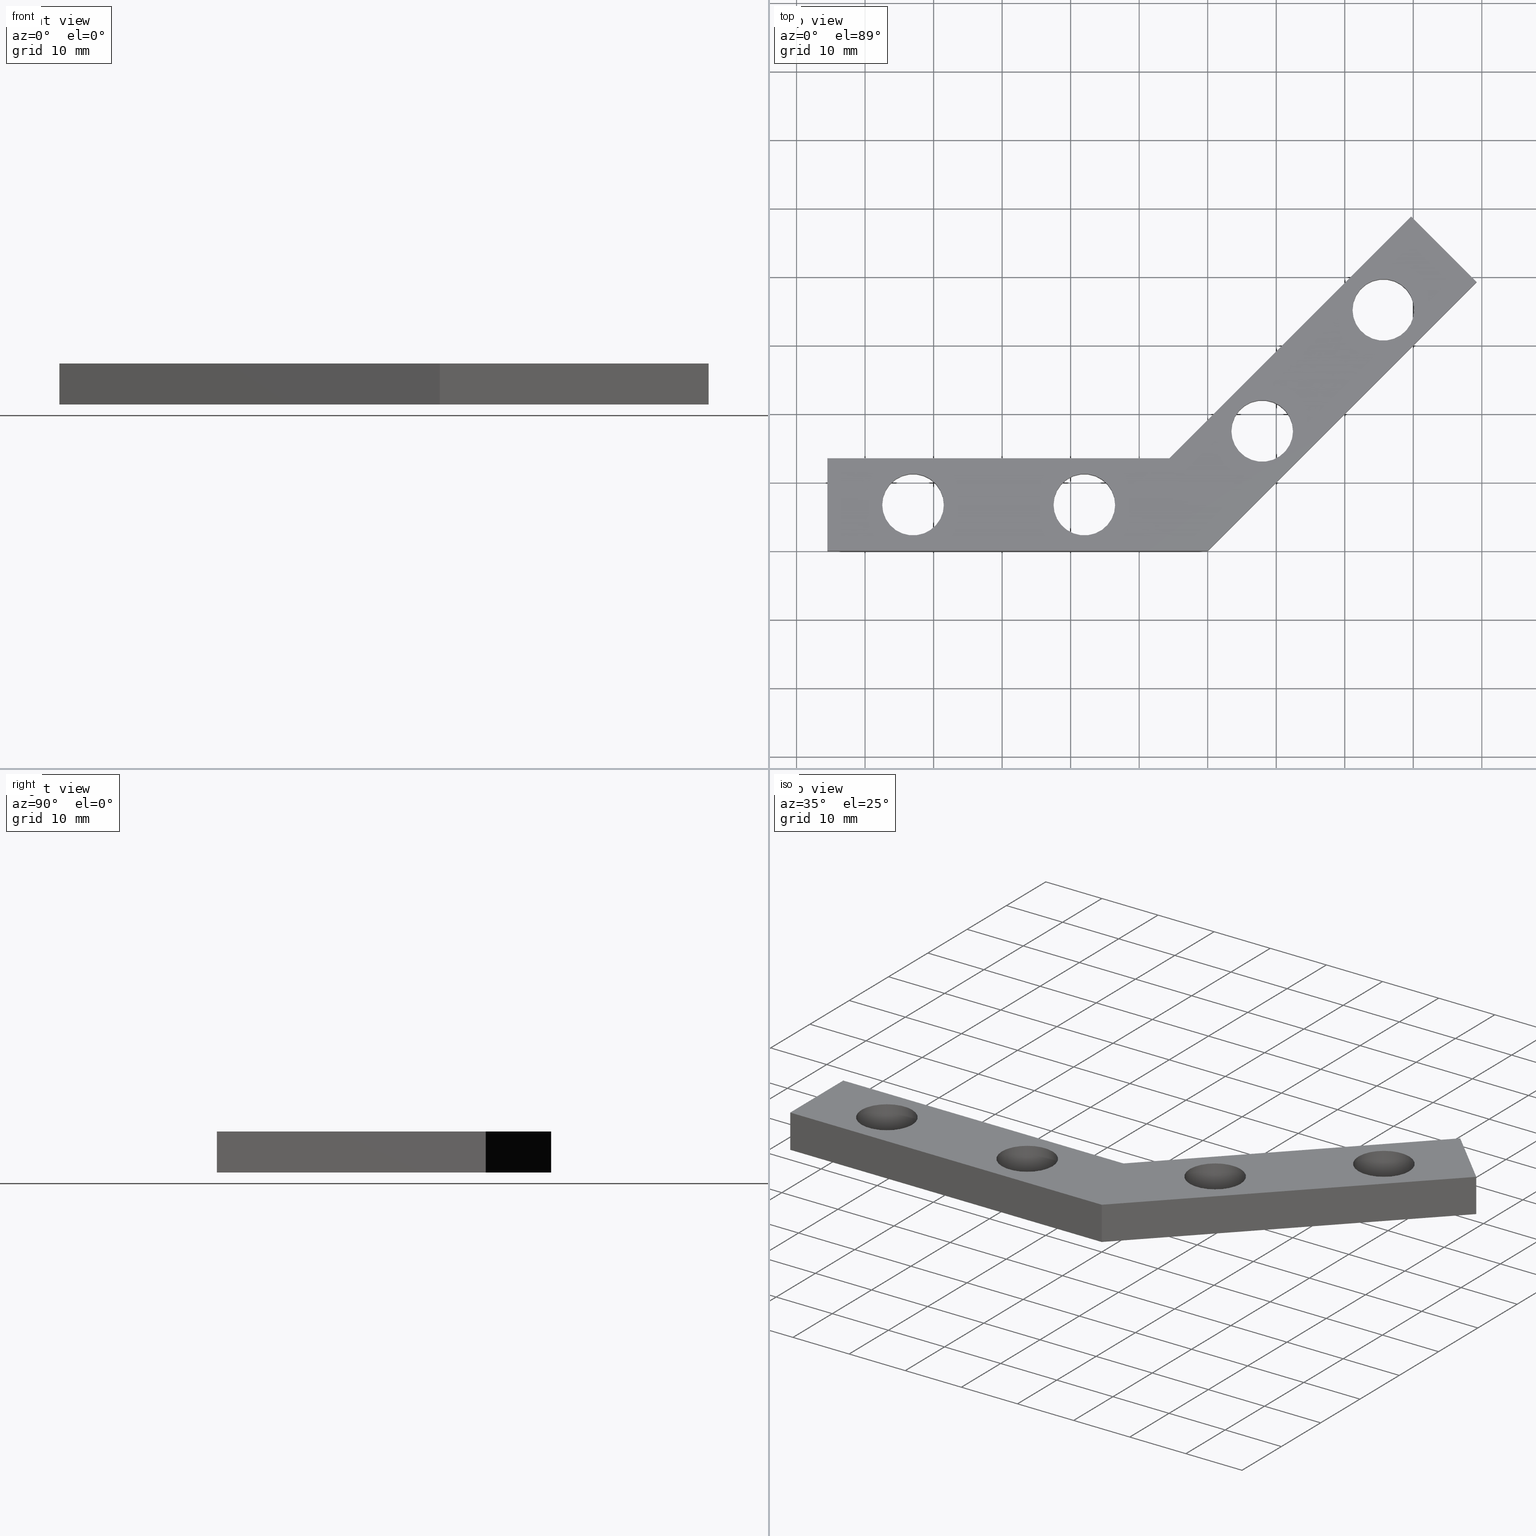
[diagram: canonical four-view strip — front | top / right | iso, engineering-drawing reading convention]
A machine part, canonical four-view strip (front | top / right | iso — engineering-drawing reading convention). The complete STEP part file that produces these views, byte-faithful:
ISO-10303-21;
HEADER;
/****************************************************************
 * Generated by software with PDE/Lib inside                    *
 * PDElib Version v4.4, created Mon 02/23/2004                  *
 * International Technegroup Inc. (www.iti-oh.com)              *
 ****************************************************************/
FILE_DESCRIPTION(('STEP AP203'),'2;1');
FILE_NAME('14.306.00.stp','2011-03-05T12:38:35',(''),(''),'2009.3.110','THINKDESIGN','');
FILE_SCHEMA(('CONFIG_CONTROL_DESIGN'));
ENDSEC;
DATA;
#2=CARTESIAN_POINT('',(-55.500028999778351,0.0,6.0));
#3=DIRECTION('',(0.0,1.0,0.0));
#4=DIRECTION('',(1.0,0.0,0.0));
#5=AXIS2_PLACEMENT_3D('',#2,#3,#4);
#6=PLANE('',#5);
#7=CARTESIAN_POINT('',(-55.500028999778351,0.0,6.0));
#8=VERTEX_POINT('',#7);
#9=CARTESIAN_POINT('',(-55.500028999778351,0.0,0.0));
#10=VERTEX_POINT('',#9);
#11=CARTESIAN_POINT('',(-55.500028999778351,0.0,6.0));
#12=DIRECTION('',(0.0,0.0,-1.0));
#13=VECTOR('',#12,6.0);
#14=LINE('',#11,#13);
#15=EDGE_CURVE('',#8,#10,#14,.T.);
#16=ORIENTED_EDGE('',*,*,#15,.T.);
#17=CARTESIAN_POINT('',(0.0,0.0,0.0));
#18=VERTEX_POINT('',#17);
#19=CARTESIAN_POINT('',(-55.500028999778351,0.0,0.0));
#20=DIRECTION('',(1.0,0.0,0.0));
#21=VECTOR('',#20,55.500028999778351);
#22=LINE('',#19,#21);
#23=EDGE_CURVE('',#10,#18,#22,.T.);
#24=ORIENTED_EDGE('',*,*,#23,.T.);
#25=CARTESIAN_POINT('',(0.0,0.0,6.0));
#26=VERTEX_POINT('',#25);
#27=CARTESIAN_POINT('',(0.0,0.0,6.0));
#28=DIRECTION('',(0.0,0.0,-1.0));
#29=VECTOR('',#28,6.0);
#30=LINE('',#27,#29);
#31=EDGE_CURVE('',#26,#18,#30,.T.);
#32=ORIENTED_EDGE('',*,*,#31,.F.);
#33=CARTESIAN_POINT('',(-55.500028999778351,0.0,6.0));
#34=DIRECTION('',(1.0,0.0,0.0));
#35=VECTOR('',#34,55.500028999778351);
#36=LINE('',#33,#35);
#37=EDGE_CURVE('',#8,#26,#36,.T.);
#38=ORIENTED_EDGE('',*,*,#37,.F.);
#39=EDGE_LOOP('',(#16,#24,#32,#38));
#40=FACE_OUTER_BOUND('',#39,.T.);
#41=ADVANCED_FACE('',(#40),#6,.F.);
#42=CARTESIAN_POINT('',(0.0,0.0,6.0));
#43=DIRECTION('',(-0.707106781186548,0.707106781186548,0.0));
#44=DIRECTION('',(0.707106781186548,0.707106781186548,0.0));
#45=AXIS2_PLACEMENT_3D('',#42,#43,#44);
#46=PLANE('',#45);
#47=ORIENTED_EDGE('',*,*,#31,.T.);
#48=CARTESIAN_POINT('',(39.244425999842861,39.244425999842861,0.0));
#49=VERTEX_POINT('',#48);
#50=CARTESIAN_POINT('',(0.0,0.0,0.0));
#51=DIRECTION('',(0.707106781186548,0.707106781186548,0.0));
#52=VECTOR('',#51,55.499999496525085);
#53=LINE('',#50,#52);
#54=EDGE_CURVE('',#18,#49,#53,.T.);
#55=ORIENTED_EDGE('',*,*,#54,.T.);
#56=CARTESIAN_POINT('',(39.244425999842861,39.244425999842861,6.0));
#57=VERTEX_POINT('',#56);
#58=CARTESIAN_POINT('',(39.244425999842861,39.244425999842861,6.0));
#59=DIRECTION('',(0.0,0.0,-1.0));
#60=VECTOR('',#59,6.0);
#61=LINE('',#58,#60);
#62=EDGE_CURVE('',#57,#49,#61,.T.);
#63=ORIENTED_EDGE('',*,*,#62,.F.);
#64=CARTESIAN_POINT('',(0.0,0.0,6.0));
#65=DIRECTION('',(0.707106781186548,0.707106781186548,0.0));
#66=VECTOR('',#65,55.499999496525085);
#67=LINE('',#64,#66);
#68=EDGE_CURVE('',#26,#57,#67,.T.);
#69=ORIENTED_EDGE('',*,*,#68,.F.);
#70=EDGE_LOOP('',(#47,#55,#63,#69));
#71=FACE_OUTER_BOUND('',#70,.T.);
#72=ADVANCED_FACE('',(#71),#46,.F.);
#73=CARTESIAN_POINT('',(39.244425999842861,39.244425999842861,6.0));
#74=DIRECTION('',(-0.707106818223596,-0.707106744149497,0.0));
#75=DIRECTION('',(-0.707106744149497,0.707106818223596,0.0));
#76=AXIS2_PLACEMENT_3D('',#73,#74,#75);
#77=PLANE('',#76);
#78=ORIENTED_EDGE('',*,*,#62,.T.);
#79=CARTESIAN_POINT('',(29.698484999881202,48.790367999804857,0.0));
#80=VERTEX_POINT('',#79);
#81=CARTESIAN_POINT('',(39.244425999842861,39.244425999842861,0.0));
#82=DIRECTION('',(-0.707106744149497,0.707106818223596,0.0));
#83=VECTOR('',#82,13.499999934866201);
#84=LINE('',#81,#83);
#85=EDGE_CURVE('',#49,#80,#84,.T.);
#86=ORIENTED_EDGE('',*,*,#85,.T.);
#87=CARTESIAN_POINT('',(29.698484999881202,48.790367999804857,6.0));
#88=VERTEX_POINT('',#87);
#89=CARTESIAN_POINT('',(29.698484999881202,48.790367999804857,6.0));
#90=DIRECTION('',(0.0,0.0,-1.0));
#91=VECTOR('',#90,6.0);
#92=LINE('',#89,#91);
#93=EDGE_CURVE('',#88,#80,#92,.T.);
#94=ORIENTED_EDGE('',*,*,#93,.F.);
#95=CARTESIAN_POINT('',(39.244425999842861,39.244425999842861,6.0));
#96=DIRECTION('',(-0.707106744149497,0.707106818223596,0.0));
#97=VECTOR('',#96,13.499999934866201);
#98=LINE('',#95,#97);
#99=EDGE_CURVE('',#57,#88,#98,.T.);
#100=ORIENTED_EDGE('',*,*,#99,.F.);
#101=EDGE_LOOP('',(#78,#86,#94,#100));
#102=FACE_OUTER_BOUND('',#101,.T.);
#103=ADVANCED_FACE('',(#102),#77,.F.);
#104=CARTESIAN_POINT('',(29.698484999881202,48.790367999804857,6.0));
#105=DIRECTION('',(0.707106781186548,-0.707106781186548,0.0));
#106=DIRECTION('',(-0.707106781186548,-0.707106781186548,0.0));
#107=AXIS2_PLACEMENT_3D('',#104,#105,#106);
#108=PLANE('',#107);
#109=ORIENTED_EDGE('',*,*,#93,.T.);
#110=CARTESIAN_POINT('',(-5.591882999977770,13.499999999945885,0.0));
#111=VERTEX_POINT('',#110);
#112=CARTESIAN_POINT('',(29.698484999881202,48.790367999804857,0.0));
#113=DIRECTION('',(-0.707106781186548,-0.707106781186548,0.0));
#114=VECTOR('',#113,49.908117046538031);
#115=LINE('',#112,#114);
#116=EDGE_CURVE('',#80,#111,#115,.T.);
#117=ORIENTED_EDGE('',*,*,#116,.T.);
#118=CARTESIAN_POINT('',(-5.591882999977770,13.499999999945885,6.0));
#119=VERTEX_POINT('',#118);
#120=CARTESIAN_POINT('',(-5.591882999977770,13.499999999945885,6.0));
#121=DIRECTION('',(0.0,0.0,-1.0));
#122=VECTOR('',#121,6.0);
#123=LINE('',#120,#122);
#124=EDGE_CURVE('',#119,#111,#123,.T.);
#125=ORIENTED_EDGE('',*,*,#124,.F.);
#126=CARTESIAN_POINT('',(29.698484999881202,48.790367999804857,6.0));
#127=DIRECTION('',(-0.707106781186548,-0.707106781186548,0.0));
#128=VECTOR('',#127,49.908117046538031);
#129=LINE('',#126,#128);
#130=EDGE_CURVE('',#88,#119,#129,.T.);
#131=ORIENTED_EDGE('',*,*,#130,.F.);
#132=EDGE_LOOP('',(#109,#117,#125,#131));
#133=FACE_OUTER_BOUND('',#132,.T.);
#134=ADVANCED_FACE('',(#133),#108,.F.);
#135=CARTESIAN_POINT('',(-5.591882999977770,13.499999999945885,6.0));
#136=DIRECTION('',(0.0,-1.0,0.0));
#137=DIRECTION('',(-1.0,0.0,0.0));
#138=AXIS2_PLACEMENT_3D('',#135,#136,#137);
#139=PLANE('',#138);
#140=ORIENTED_EDGE('',*,*,#124,.T.);
#141=CARTESIAN_POINT('',(-55.500028999778351,13.499999999945885,0.0));
#142=VERTEX_POINT('',#141);
#143=CARTESIAN_POINT('',(-5.591882999977770,13.499999999945885,0.0));
#144=DIRECTION('',(-1.0,0.0,0.0));
#145=VECTOR('',#144,49.908145999800581);
#146=LINE('',#143,#145);
#147=EDGE_CURVE('',#111,#142,#146,.T.);
#148=ORIENTED_EDGE('',*,*,#147,.T.);
#149=CARTESIAN_POINT('',(-55.500028999778351,13.499999999945885,6.0));
#150=VERTEX_POINT('',#149);
#151=CARTESIAN_POINT('',(-55.500028999778351,13.499999999945885,6.0));
#152=DIRECTION('',(0.0,0.0,-1.0));
#153=VECTOR('',#152,6.0);
#154=LINE('',#151,#153);
#155=EDGE_CURVE('',#150,#142,#154,.T.);
#156=ORIENTED_EDGE('',*,*,#155,.F.);
#157=CARTESIAN_POINT('',(-5.591882999977770,13.499999999945885,6.0));
#158=DIRECTION('',(-1.0,0.0,0.0));
#159=VECTOR('',#158,49.908145999800581);
#160=LINE('',#157,#159);
#161=EDGE_CURVE('',#119,#150,#160,.T.);
#162=ORIENTED_EDGE('',*,*,#161,.F.);
#163=EDGE_LOOP('',(#140,#148,#156,#162));
#164=FACE_OUTER_BOUND('',#163,.T.);
#165=ADVANCED_FACE('',(#164),#139,.F.);
#166=CARTESIAN_POINT('',(-55.500028999778351,13.499999999945885,6.0));
#167=DIRECTION('',(1.0,0.0,0.0));
#168=DIRECTION('',(0.0,-1.0,0.0));
#169=AXIS2_PLACEMENT_3D('',#166,#167,#168);
#170=PLANE('',#169);
#171=ORIENTED_EDGE('',*,*,#155,.T.);
#172=CARTESIAN_POINT('',(-55.500028999778351,13.499999999945885,0.0));
#173=DIRECTION('',(0.0,-1.0,0.0));
#174=VECTOR('',#173,13.499999999945885);
#175=LINE('',#172,#174);
#176=EDGE_CURVE('',#142,#10,#175,.T.);
#177=ORIENTED_EDGE('',*,*,#176,.T.);
#178=ORIENTED_EDGE('',*,*,#15,.F.);
#179=CARTESIAN_POINT('',(-55.500028999778351,13.499999999945885,6.0));
#180=DIRECTION('',(0.0,-1.0,0.0));
#181=VECTOR('',#180,13.499999999945885);
#182=LINE('',#179,#181);
#183=EDGE_CURVE('',#150,#8,#182,.T.);
#184=ORIENTED_EDGE('',*,*,#183,.F.);
#185=EDGE_LOOP('',(#171,#177,#178,#184));
#186=FACE_OUTER_BOUND('',#185,.T.);
#187=ADVANCED_FACE('',(#186),#170,.F.);
#188=CARTESIAN_POINT('',(-64.974479231256737,-4.879041531728490,6.0));
#189=DIRECTION('',(0.0,0.0,1.0));
#190=DIRECTION('',(1.0,0.0,0.0));
#191=AXIS2_PLACEMENT_3D('',#188,#189,#190);
#192=PLANE('',#191);
#193=ORIENTED_EDGE('',*,*,#37,.T.);
#194=ORIENTED_EDGE('',*,*,#68,.T.);
#195=ORIENTED_EDGE('',*,*,#99,.T.);
#196=ORIENTED_EDGE('',*,*,#130,.T.);
#197=ORIENTED_EDGE('',*,*,#161,.T.);
#198=ORIENTED_EDGE('',*,*,#183,.T.);
#199=EDGE_LOOP('',(#193,#194,#195,#196,#197,#198));
#200=FACE_OUTER_BOUND('',#199,.T.);
#201=CARTESIAN_POINT('',(-47.500028999828373,6.749999999973170,6.0));
#202=VERTEX_POINT('',#201);
#203=CARTESIAN_POINT('',(-38.500028999828373,6.749999999973170,6.0));
#204=VERTEX_POINT('',#203);
#205=CARTESIAN_POINT('',(-43.000028999828373,6.749999999973170,6.0));
#206=DIRECTION('',(0.0,0.0,1.0));
#207=DIRECTION('',(1.0,0.0,0.0));
#208=AXIS2_PLACEMENT_3D('',#205,#206,#207);
#209=CIRCLE('',#208,4.500000000000000);
#210=EDGE_CURVE('',#202,#204,#209,.T.);
#211=ORIENTED_EDGE('',*,*,#210,.F.);
#212=CARTESIAN_POINT('',(-43.000028999828373,6.749999999973170,6.0));
#213=DIRECTION('',(0.0,0.0,1.0));
#214=DIRECTION('',(1.0,0.0,0.0));
#215=AXIS2_PLACEMENT_3D('',#212,#213,#214);
#216=CIRCLE('',#215,4.500000000000000);
#217=EDGE_CURVE('',#204,#202,#216,.T.);
#218=ORIENTED_EDGE('',*,*,#217,.F.);
#219=EDGE_LOOP('',(#211,#218));
#220=FACE_BOUND('',#219,.T.);
#221=CARTESIAN_POINT('',(-22.500028999928418,6.749999999973170,6.0));
#222=VERTEX_POINT('',#221);
#223=CARTESIAN_POINT('',(-13.500028999928418,6.749999999973170,6.0));
#224=VERTEX_POINT('',#223);
#225=CARTESIAN_POINT('',(-18.000028999928418,6.749999999973170,6.0));
#226=DIRECTION('',(0.0,0.0,1.0));
#227=DIRECTION('',(1.0,0.0,0.0));
#228=AXIS2_PLACEMENT_3D('',#225,#226,#227);
#229=CIRCLE('',#228,4.500000000000000);
#230=EDGE_CURVE('',#222,#224,#229,.T.);
#231=ORIENTED_EDGE('',*,*,#230,.F.);
#232=CARTESIAN_POINT('',(-18.000028999928418,6.749999999973170,6.0));
#233=DIRECTION('',(0.0,0.0,1.0));
#234=DIRECTION('',(1.0,0.0,0.0));
#235=AXIS2_PLACEMENT_3D('',#232,#233,#234);
#236=CIRCLE('',#235,4.500000000000000);
#237=EDGE_CURVE('',#224,#222,#236,.T.);
#238=ORIENTED_EDGE('',*,*,#237,.F.);
#239=EDGE_LOOP('',(#231,#238));
#240=FACE_BOUND('',#239,.T.);
#241=CARTESIAN_POINT('',(3.454950999967878,17.500892999929874,6.0));
#242=VERTEX_POINT('',#241);
#243=CARTESIAN_POINT('',(12.454950999967878,17.500892999929874,6.0));
#244=VERTEX_POINT('',#243);
#245=CARTESIAN_POINT('',(7.954950999967878,17.500892999929874,6.0));
#246=DIRECTION('',(0.0,0.0,1.0));
#247=DIRECTION('',(1.0,0.0,0.0));
#248=AXIS2_PLACEMENT_3D('',#245,#246,#247);
#249=CIRCLE('',#248,4.500000000000000);
#250=EDGE_CURVE('',#242,#244,#249,.T.);
#251=ORIENTED_EDGE('',*,*,#250,.F.);
#252=CARTESIAN_POINT('',(7.954950999967878,17.500892999929874,6.0));
#253=DIRECTION('',(0.0,0.0,1.0));
#254=DIRECTION('',(1.0,0.0,0.0));
#255=AXIS2_PLACEMENT_3D('',#252,#253,#254);
#256=CIRCLE('',#255,4.500000000000000);
#257=EDGE_CURVE('',#244,#242,#256,.T.);
#258=ORIENTED_EDGE('',*,*,#257,.F.);
#259=EDGE_LOOP('',(#251,#258));
#260=FACE_BOUND('',#259,.T.);
#261=CARTESIAN_POINT('',(21.132620999897426,35.178561999859085,6.0));
#262=VERTEX_POINT('',#261);
#263=CARTESIAN_POINT('',(30.132620999897426,35.178561999859085,6.0));
#264=VERTEX_POINT('',#263);
#265=CARTESIAN_POINT('',(25.632620999897426,35.178561999859085,6.0));
#266=DIRECTION('',(0.0,0.0,1.0));
#267=DIRECTION('',(1.0,0.0,0.0));
#268=AXIS2_PLACEMENT_3D('',#265,#266,#267);
#269=CIRCLE('',#268,4.500000000000000);
#270=EDGE_CURVE('',#262,#264,#269,.T.);
#271=ORIENTED_EDGE('',*,*,#270,.F.);
#272=CARTESIAN_POINT('',(25.632620999897426,35.178561999859085,6.0));
#273=DIRECTION('',(0.0,0.0,1.0));
#274=DIRECTION('',(1.0,0.0,0.0));
#275=AXIS2_PLACEMENT_3D('',#272,#273,#274);
#276=CIRCLE('',#275,4.500000000000000);
#277=EDGE_CURVE('',#264,#262,#276,.T.);
#278=ORIENTED_EDGE('',*,*,#277,.F.);
#279=EDGE_LOOP('',(#271,#278));
#280=FACE_BOUND('',#279,.T.);
#281=ADVANCED_FACE('',(#200,#220,#240,#260,#280),#192,.T.);
#282=CARTESIAN_POINT('',(-64.974479231256737,-4.879041531728490,0.0));
#283=DIRECTION('',(0.0,0.0,1.0));
#284=DIRECTION('',(1.0,0.0,0.0));
#285=AXIS2_PLACEMENT_3D('',#282,#283,#284);
#286=PLANE('',#285);
#287=ORIENTED_EDGE('',*,*,#176,.F.);
#288=ORIENTED_EDGE('',*,*,#147,.F.);
#289=ORIENTED_EDGE('',*,*,#116,.F.);
#290=ORIENTED_EDGE('',*,*,#85,.F.);
#291=ORIENTED_EDGE('',*,*,#54,.F.);
#292=ORIENTED_EDGE('',*,*,#23,.F.);
#293=EDGE_LOOP('',(#287,#288,#289,#290,#291,#292));
#294=FACE_OUTER_BOUND('',#293,.T.);
#295=CARTESIAN_POINT('',(-47.500028999828373,6.749999999973170,0.0));
#296=VERTEX_POINT('',#295);
#297=CARTESIAN_POINT('',(-38.500028999828373,6.749999999973170,0.0));
#298=VERTEX_POINT('',#297);
#299=CARTESIAN_POINT('',(-43.000028999828373,6.749999999973170,0.0));
#300=DIRECTION('',(0.0,0.0,-1.0));
#301=DIRECTION('',(1.0,0.0,0.0));
#302=AXIS2_PLACEMENT_3D('',#299,#300,#301);
#303=CIRCLE('',#302,4.500000000000000);
#304=EDGE_CURVE('',#296,#298,#303,.T.);
#305=ORIENTED_EDGE('',*,*,#304,.F.);
#306=CARTESIAN_POINT('',(-43.000028999828373,6.749999999973170,0.0));
#307=DIRECTION('',(0.0,0.0,-1.0));
#308=DIRECTION('',(1.0,0.0,0.0));
#309=AXIS2_PLACEMENT_3D('',#306,#307,#308);
#310=CIRCLE('',#309,4.500000000000000);
#311=EDGE_CURVE('',#298,#296,#310,.T.);
#312=ORIENTED_EDGE('',*,*,#311,.F.);
#313=EDGE_LOOP('',(#305,#312));
#314=FACE_BOUND('',#313,.T.);
#315=CARTESIAN_POINT('',(-22.500028999928418,6.749999999973170,0.0));
#316=VERTEX_POINT('',#315);
#317=CARTESIAN_POINT('',(-13.500028999928418,6.749999999973170,0.0));
#318=VERTEX_POINT('',#317);
#319=CARTESIAN_POINT('',(-18.000028999928418,6.749999999973170,0.0));
#320=DIRECTION('',(0.0,0.0,-1.0));
#321=DIRECTION('',(1.0,0.0,0.0));
#322=AXIS2_PLACEMENT_3D('',#319,#320,#321);
#323=CIRCLE('',#322,4.500000000000000);
#324=EDGE_CURVE('',#316,#318,#323,.T.);
#325=ORIENTED_EDGE('',*,*,#324,.F.);
#326=CARTESIAN_POINT('',(-18.000028999928418,6.749999999973170,0.0));
#327=DIRECTION('',(0.0,0.0,-1.0));
#328=DIRECTION('',(1.0,0.0,0.0));
#329=AXIS2_PLACEMENT_3D('',#326,#327,#328);
#330=CIRCLE('',#329,4.500000000000000);
#331=EDGE_CURVE('',#318,#316,#330,.T.);
#332=ORIENTED_EDGE('',*,*,#331,.F.);
#333=EDGE_LOOP('',(#325,#332));
#334=FACE_BOUND('',#333,.T.);
#335=CARTESIAN_POINT('',(3.454950999967878,17.500892999929874,0.0));
#336=VERTEX_POINT('',#335);
#337=CARTESIAN_POINT('',(12.454950999967878,17.500892999929874,0.0));
#338=VERTEX_POINT('',#337);
#339=CARTESIAN_POINT('',(7.954950999967878,17.500892999929874,0.0));
#340=DIRECTION('',(0.0,0.0,-1.0));
#341=DIRECTION('',(1.0,0.0,0.0));
#342=AXIS2_PLACEMENT_3D('',#339,#340,#341);
#343=CIRCLE('',#342,4.500000000000000);
#344=EDGE_CURVE('',#336,#338,#343,.T.);
#345=ORIENTED_EDGE('',*,*,#344,.F.);
#346=CARTESIAN_POINT('',(7.954950999967878,17.500892999929874,0.0));
#347=DIRECTION('',(0.0,0.0,-1.0));
#348=DIRECTION('',(1.0,0.0,0.0));
#349=AXIS2_PLACEMENT_3D('',#346,#347,#348);
#350=CIRCLE('',#349,4.500000000000000);
#351=EDGE_CURVE('',#338,#336,#350,.T.);
#352=ORIENTED_EDGE('',*,*,#351,.F.);
#353=EDGE_LOOP('',(#345,#352));
#354=FACE_BOUND('',#353,.T.);
#355=CARTESIAN_POINT('',(21.132620999897426,35.178561999859085,0.0));
#356=VERTEX_POINT('',#355);
#357=CARTESIAN_POINT('',(30.132620999897426,35.178561999859085,0.0));
#358=VERTEX_POINT('',#357);
#359=CARTESIAN_POINT('',(25.632620999897426,35.178561999859085,0.0));
#360=DIRECTION('',(0.0,0.0,-1.0));
#361=DIRECTION('',(1.0,0.0,0.0));
#362=AXIS2_PLACEMENT_3D('',#359,#360,#361);
#363=CIRCLE('',#362,4.500000000000000);
#364=EDGE_CURVE('',#356,#358,#363,.T.);
#365=ORIENTED_EDGE('',*,*,#364,.F.);
#366=CARTESIAN_POINT('',(25.632620999897426,35.178561999859085,0.0));
#367=DIRECTION('',(0.0,0.0,-1.0));
#368=DIRECTION('',(1.0,0.0,0.0));
#369=AXIS2_PLACEMENT_3D('',#366,#367,#368);
#370=CIRCLE('',#369,4.500000000000000);
#371=EDGE_CURVE('',#358,#356,#370,.T.);
#372=ORIENTED_EDGE('',*,*,#371,.F.);
#373=EDGE_LOOP('',(#365,#372));
#374=FACE_BOUND('',#373,.T.);
#375=ADVANCED_FACE('',(#294,#314,#334,#354,#374),#286,.F.);
#376=CARTESIAN_POINT('',(-43.000028999828373,6.749999999973170,6.0));
#377=DIRECTION('',(0.0,0.0,1.0));
#378=DIRECTION('',(1.0,0.0,0.0));
#379=AXIS2_PLACEMENT_3D('',#376,#377,#378);
#380=CYLINDRICAL_SURFACE('',#379,4.500000000000000);
#381=CARTESIAN_POINT('',(-38.500028999828373,6.749999999973170,6.0));
#382=DIRECTION('',(0.0,0.0,-1.0));
#383=VECTOR('',#382,6.0);
#384=LINE('',#381,#383);
#385=EDGE_CURVE('',#204,#298,#384,.T.);
#386=ORIENTED_EDGE('',*,*,#385,.T.);
#387=ORIENTED_EDGE('',*,*,#311,.T.);
#388=ORIENTED_EDGE('',*,*,#304,.T.);
#389=ORIENTED_EDGE('',*,*,#385,.F.);
#390=ORIENTED_EDGE('',*,*,#217,.T.);
#391=ORIENTED_EDGE('',*,*,#210,.T.);
#392=EDGE_LOOP('',(#386,#387,#388,#389,#390,#391));
#393=FACE_OUTER_BOUND('',#392,.T.);
#394=ADVANCED_FACE('',(#393),#380,.F.);
#395=CARTESIAN_POINT('',(-18.000028999928418,6.749999999973170,6.0));
#396=DIRECTION('',(0.0,0.0,1.0));
#397=DIRECTION('',(1.0,0.0,0.0));
#398=AXIS2_PLACEMENT_3D('',#395,#396,#397);
#399=CYLINDRICAL_SURFACE('',#398,4.500000000000000);
#400=CARTESIAN_POINT('',(-13.500028999928418,6.749999999973170,6.0));
#401=DIRECTION('',(0.0,0.0,-1.0));
#402=VECTOR('',#401,6.0);
#403=LINE('',#400,#402);
#404=EDGE_CURVE('',#224,#318,#403,.T.);
#405=ORIENTED_EDGE('',*,*,#404,.T.);
#406=ORIENTED_EDGE('',*,*,#331,.T.);
#407=ORIENTED_EDGE('',*,*,#324,.T.);
#408=ORIENTED_EDGE('',*,*,#404,.F.);
#409=ORIENTED_EDGE('',*,*,#237,.T.);
#410=ORIENTED_EDGE('',*,*,#230,.T.);
#411=EDGE_LOOP('',(#405,#406,#407,#408,#409,#410));
#412=FACE_OUTER_BOUND('',#411,.T.);
#413=ADVANCED_FACE('',(#412),#399,.F.);
#414=CARTESIAN_POINT('',(7.954950999967878,17.500892999929874,6.0));
#415=DIRECTION('',(0.0,0.0,1.0));
#416=DIRECTION('',(1.0,0.0,0.0));
#417=AXIS2_PLACEMENT_3D('',#414,#415,#416);
#418=CYLINDRICAL_SURFACE('',#417,4.500000000000000);
#419=CARTESIAN_POINT('',(12.454950999967878,17.500892999929874,6.0));
#420=DIRECTION('',(0.0,0.0,-1.0));
#421=VECTOR('',#420,6.0);
#422=LINE('',#419,#421);
#423=EDGE_CURVE('',#244,#338,#422,.T.);
#424=ORIENTED_EDGE('',*,*,#423,.T.);
#425=ORIENTED_EDGE('',*,*,#351,.T.);
#426=ORIENTED_EDGE('',*,*,#344,.T.);
#427=ORIENTED_EDGE('',*,*,#423,.F.);
#428=ORIENTED_EDGE('',*,*,#257,.T.);
#429=ORIENTED_EDGE('',*,*,#250,.T.);
#430=EDGE_LOOP('',(#424,#425,#426,#427,#428,#429));
#431=FACE_OUTER_BOUND('',#430,.T.);
#432=ADVANCED_FACE('',(#431),#418,.F.);
#433=CARTESIAN_POINT('',(25.632620999897426,35.178561999859085,6.0));
#434=DIRECTION('',(0.0,0.0,1.0));
#435=DIRECTION('',(1.0,0.0,0.0));
#436=AXIS2_PLACEMENT_3D('',#433,#434,#435);
#437=CYLINDRICAL_SURFACE('',#436,4.500000000000000);
#438=CARTESIAN_POINT('',(30.132620999897426,35.178561999859085,6.0));
#439=DIRECTION('',(0.0,0.0,-1.0));
#440=VECTOR('',#439,6.0);
#441=LINE('',#438,#440);
#442=EDGE_CURVE('',#264,#358,#441,.T.);
#443=ORIENTED_EDGE('',*,*,#442,.T.);
#444=ORIENTED_EDGE('',*,*,#371,.T.);
#445=ORIENTED_EDGE('',*,*,#364,.T.);
#446=ORIENTED_EDGE('',*,*,#442,.F.);
#447=ORIENTED_EDGE('',*,*,#277,.T.);
#448=ORIENTED_EDGE('',*,*,#270,.T.);
#449=EDGE_LOOP('',(#443,#444,#445,#446,#447,#448));
#450=FACE_OUTER_BOUND('',#449,.T.);
#451=ADVANCED_FACE('',(#450),#437,.F.);
#452=CLOSED_SHELL('',(#41,#72,#103,#134,#165,#187,#281,#375,#394,#413,#432,#451));
#453=MANIFOLD_SOLID_BREP('',#452);
#454=CARTESIAN_POINT('',(-43.000028999828373,6.749999999973170,6.0));
#460=(NAMED_UNIT(*)PLANE_ANGLE_UNIT()SI_UNIT($,.RADIAN.));
#461=DIMENSIONAL_EXPONENTS(0.0,0.0,0.0,0.0,0.0,0.0,0.0);
#462=PLANE_ANGLE_MEASURE_WITH_UNIT(PLANE_ANGLE_MEASURE(0.017453292500000),#460);
#466=(CONVERSION_BASED_UNIT('DEGREE',#462)NAMED_UNIT(#461)PLANE_ANGLE_UNIT());
#470=(NAMED_UNIT(*)SI_UNIT($,.STERADIAN.)SOLID_ANGLE_UNIT());
#474=(LENGTH_UNIT()NAMED_UNIT(*)SI_UNIT(.MILLI.,.METRE.));
#476=UNCERTAINTY_MEASURE_WITH_UNIT(LENGTH_MEASURE(0.001000000000000),#474,'DISTANCE_ACCURACY_VALUE','');
#478=(GEOMETRIC_REPRESENTATION_CONTEXT(3)GLOBAL_UNCERTAINTY_ASSIGNED_CONTEXT((#476))GLOBAL_UNIT_ASSIGNED_CONTEXT((#466,#470,#474))REPRESENTATION_CONTEXT('thinkdesign','2009.3.110'));
#479=ADVANCED_BREP_SHAPE_REPRESENTATION('',(#453),#478);
#480=APPLICATION_CONTEXT('configuration controlled 3D designs of mechanical parts and assemblies');
#481=APPLICATION_PROTOCOL_DEFINITION('International Standard','config_control_design',1995,#480);
#482=MECHANICAL_CONTEXT('None',#480,'mechanical');
#483=PRODUCT('None','None','None',(#482));
#484=PRODUCT_RELATED_PRODUCT_CATEGORY('detail',$,(#483));
#485=PRODUCT_CATEGORY('part',$);
#486=PRODUCT_CATEGORY_RELATIONSHIP('None','None',#485,#484);
#487=PERSON('PERSON1','None','None',$,$,$);
#488=ORGANIZATION('','None','None');
#489=PERSON_AND_ORGANIZATION(#487,#488);
#490=PERSON_AND_ORGANIZATION_ROLE('design_owner');
#491=CC_DESIGN_PERSON_AND_ORGANIZATION_ASSIGNMENT(#489,#490,(#483));
#492=PRODUCT_DEFINITION_FORMATION_WITH_SPECIFIED_SOURCE('None','None',#483,.NOT_KNOWN.);
#493=PERSON('PERSON2','None','None',$,$,$);
#494=ORGANIZATION('','None','None');
#495=PERSON_AND_ORGANIZATION(#493,#494);
#496=PERSON_AND_ORGANIZATION_ROLE('creator');
#497=CC_DESIGN_PERSON_AND_ORGANIZATION_ASSIGNMENT(#495,#496,(#492));
#498=PERSON('PERSON3','None','None',$,$,$);
#499=ORGANIZATION('','None','None');
#500=PERSON_AND_ORGANIZATION(#498,#499);
#501=PERSON_AND_ORGANIZATION_ROLE('part_supplier');
#502=CC_DESIGN_PERSON_AND_ORGANIZATION_ASSIGNMENT(#500,#501,(#492));
#503=APPROVAL_STATUS('approved');
#504=APPROVAL(#503,'None');
#505=PERSON('PERSON4','None','None',$,$,$);
#506=ORGANIZATION('','None','None');
#507=PERSON_AND_ORGANIZATION(#505,#506);
#508=APPROVAL_ROLE('None');
#509=APPROVAL_PERSON_ORGANIZATION(#507,#504,#508);
#510=CALENDAR_DATE(2011,5,3);
#511=COORDINATED_UNIVERSAL_TIME_OFFSET(0,0,.AHEAD.);
#512=LOCAL_TIME(12,38,35.0,#511);
#513=DATE_AND_TIME(#510,#512);
#514=APPROVAL_DATE_TIME(#513,#504);
#515=CC_DESIGN_APPROVAL(#504,(#492));
#516=SECURITY_CLASSIFICATION_LEVEL('unclassified');
#517=SECURITY_CLASSIFICATION('None','None',#516);
#518=CC_DESIGN_SECURITY_CLASSIFICATION(#517,(#492));
#519=APPROVAL_STATUS('approved');
#520=APPROVAL(#519,'None');
#521=PERSON('PERSON5','None','None',$,$,$);
#522=ORGANIZATION('','None','None');
#523=PERSON_AND_ORGANIZATION(#521,#522);
#524=APPROVAL_ROLE('None');
#525=APPROVAL_PERSON_ORGANIZATION(#523,#520,#524);
#526=CALENDAR_DATE(2011,5,3);
#527=COORDINATED_UNIVERSAL_TIME_OFFSET(0,0,.AHEAD.);
#528=LOCAL_TIME(12,38,35.0,#527);
#529=DATE_AND_TIME(#526,#528);
#530=APPROVAL_DATE_TIME(#529,#520);
#531=CC_DESIGN_APPROVAL(#520,(#517));
#532=PERSON('PERSON6','None','None',$,$,$);
#533=ORGANIZATION('','None','None');
#534=PERSON_AND_ORGANIZATION(#532,#533);
#535=PERSON_AND_ORGANIZATION_ROLE('classification_officer');
#536=CC_DESIGN_PERSON_AND_ORGANIZATION_ASSIGNMENT(#534,#535,(#517));
#537=DATE_TIME_ROLE('classification_date');
#538=CALENDAR_DATE(2011,5,3);
#539=COORDINATED_UNIVERSAL_TIME_OFFSET(0,0,.AHEAD.);
#540=LOCAL_TIME(12,38,35.0,#539);
#541=DATE_AND_TIME(#538,#540);
#542=CC_DESIGN_DATE_AND_TIME_ASSIGNMENT(#541,#537,(#517));
#543=DESIGN_CONTEXT('part definition',#480,'design');
#544=DOCUMENT_TYPE('cad_filename');
#545=DOCUMENT('None','None','None',#544);
#546=PRODUCT_DEFINITION_WITH_ASSOCIATED_DOCUMENTS('None','None',#492,#543,(#545));
#547=PERSON('PERSON7','None','None',$,$,$);
#548=ORGANIZATION('','None','None');
#549=PERSON_AND_ORGANIZATION(#547,#548);
#550=PERSON_AND_ORGANIZATION_ROLE('creator');
#551=CC_DESIGN_PERSON_AND_ORGANIZATION_ASSIGNMENT(#549,#550,(#546));
#552=DATE_TIME_ROLE('creation_date');
#553=CALENDAR_DATE(2011,5,3);
#554=COORDINATED_UNIVERSAL_TIME_OFFSET(0,0,.AHEAD.);
#555=LOCAL_TIME(12,38,35.0,#554);
#556=DATE_AND_TIME(#553,#555);
#557=CC_DESIGN_DATE_AND_TIME_ASSIGNMENT(#556,#552,(#546));
#558=APPROVAL_STATUS('approved');
#559=APPROVAL(#558,'None');
#560=PERSON('PERSON8','None','None',$,$,$);
#561=ORGANIZATION('','None','None');
#562=PERSON_AND_ORGANIZATION(#560,#561);
#563=APPROVAL_ROLE('None');
#564=APPROVAL_PERSON_ORGANIZATION(#562,#559,#563);
#565=CALENDAR_DATE(2011,5,3);
#566=COORDINATED_UNIVERSAL_TIME_OFFSET(0,0,.AHEAD.);
#567=LOCAL_TIME(12,38,35.0,#566);
#568=DATE_AND_TIME(#565,#567);
#569=APPROVAL_DATE_TIME(#568,#559);
#570=CC_DESIGN_APPROVAL(#559,(#546));
#571=PRODUCT_DEFINITION_SHAPE('None','None',#546);
#572=SHAPE_DEFINITION_REPRESENTATION(#571,#479);
#573=DIMENSIONAL_EXPONENTS(0.0,0.0,0.0,0.0,0.0,0.0,0.0);
#574=DIMENSIONAL_EXPONENTS(1.0,0.0,0.0,0.0,0.0,0.0,0.0);
ENDSEC;
END-ISO-10303-21;
